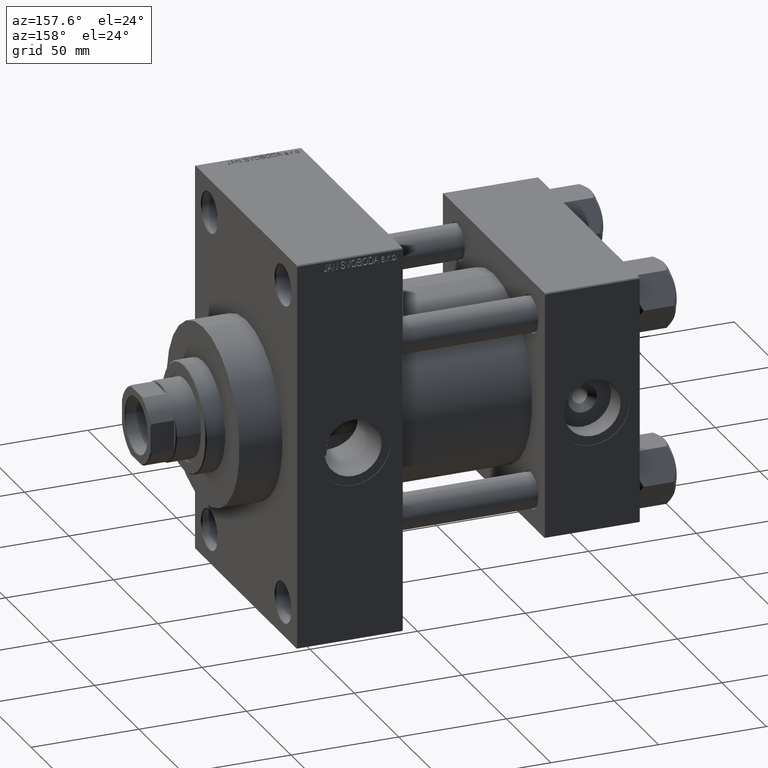
[diagram: clean part render]
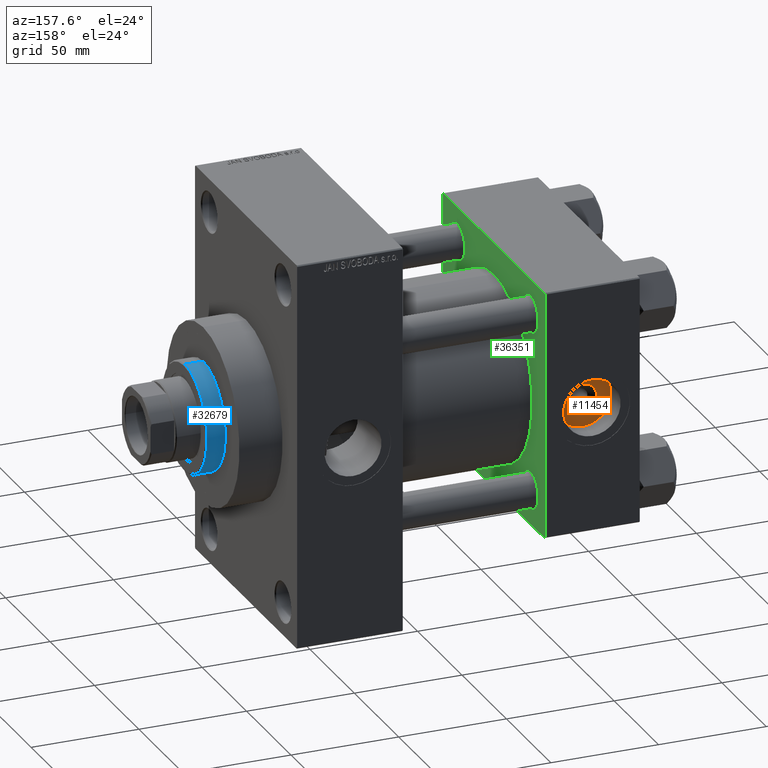
[diagram: same view with three faces highlighted in distinct colors, each labeled with its STEP entity id]
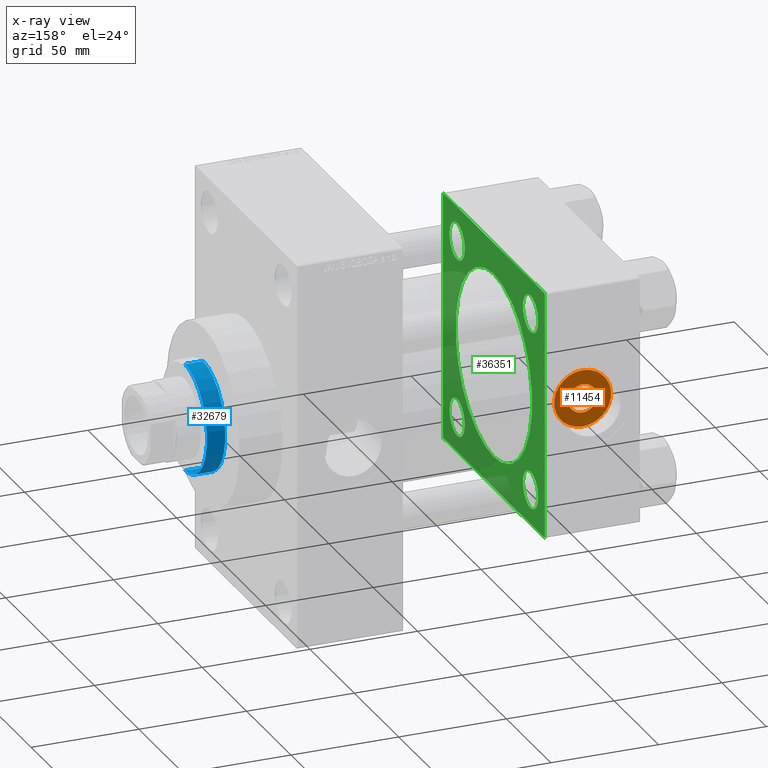
[diagram: x-ray of the same camera — body ghosted, the three highlighted faces saturated]
A machine part, auxiliary view with three faces highlighted in distinct colors.
The next image is the same camera in x-ray (body ghosted, the three faces saturated) — at least one of them is partly hidden behind the body in this view.
Their STEP definitions:

[orange] entity #11454 — the highlighted planar face has unit normal (0, 1, 0).
#432 = CIRCLE ( 'NONE', #6572, 6.640000000000048530 ) ;
#1612 = VERTEX_POINT ( 'NONE', #31325 ) ;
#1887 = AXIS2_PLACEMENT_3D ( 'NONE', #35921, #2862, #17583 ) ;
#2862 = DIRECTION ( 'NONE',  ( 0.000000000000000000, 1.000000000000000000, 0.000000000000000000 ) ) ;
#2896 = DIRECTION ( 'NONE',  ( 0.000000000000000000, -0.000000000000000000, 1.000000000000000000 ) ) ;
#4707 = DIRECTION ( 'NONE',  ( 0.000000000000000000, 0.000000000000000000, 1.000000000000000000 ) ) ;
#4834 = DIRECTION ( 'NONE',  ( -0.000000000000000000, -1.000000000000000000, -0.000000000000000000 ) ) ;
#6486 = CIRCLE ( 'NONE', #1887, 13.22000000000000419 ) ;
#6572 = AXIS2_PLACEMENT_3D ( 'NONE', #23293, #44520, #4707 ) ;
#8546 = VERTEX_POINT ( 'NONE', #31922 ) ;
#8781 = EDGE_LOOP ( 'NONE', ( #26931, #31470 ) ) ;
#10806 = AXIS2_PLACEMENT_3D ( 'NONE', #12808, #4834, #38840 ) ;
#11454 = ADVANCED_FACE ( 'NONE', ( #14003, #28957 ), #35955, .T. ) ;
#12407 = EDGE_CURVE ( 'NONE', #38033, #28678, #43931, .T. ) ;
#12430 = AXIS2_PLACEMENT_3D ( 'NONE', #29352, #33207, #44046 ) ;
#12808 = CARTESIAN_POINT ( 'NONE',  ( 22.00000000000000000, 46.50000000000000000, 0.000000000000000000 ) ) ;
#14003 = FACE_BOUND ( 'NONE', #26226, .T. ) ;
#15229 = CARTESIAN_POINT ( 'NONE',  ( 22.00000000000000000, 46.50000000000000000, 6.640000000000048530 ) ) ;
#15294 = ORIENTED_EDGE ( 'NONE', *, *, #46822, .T. ) ;
#17583 = DIRECTION ( 'NONE',  ( 0.000000000000000000, 0.000000000000000000, 1.000000000000000000 ) ) ;
#17767 = EDGE_CURVE ( 'NONE', #8546, #1612, #33200, .T. ) ;
#17816 = CARTESIAN_POINT ( 'NONE',  ( 22.00000000000000000, 46.50000000000000000, -6.640000000000048530 ) ) ;
#23293 = CARTESIAN_POINT ( 'NONE',  ( 22.00000000000000000, 46.50000000000000000, 0.000000000000000000 ) ) ;
#26226 = EDGE_LOOP ( 'NONE', ( #46633, #15294 ) ) ;
#26931 = ORIENTED_EDGE ( 'NONE', *, *, #17767, .T. ) ;
#28678 = VERTEX_POINT ( 'NONE', #17816 ) ;
#28695 = EDGE_CURVE ( 'NONE', #1612, #8546, #6486, .T. ) ;
#28957 = FACE_OUTER_BOUND ( 'NONE', #8781, .T. ) ;
#29352 = CARTESIAN_POINT ( 'NONE',  ( 22.00000000000000000, 46.50000000000000000, 0.000000000000000000 ) ) ;
#31325 = CARTESIAN_POINT ( 'NONE',  ( 22.00000000000000000, 46.50000000000000000, -13.22000000000000419 ) ) ;
#31470 = ORIENTED_EDGE ( 'NONE', *, *, #28695, .T. ) ;
#31922 = CARTESIAN_POINT ( 'NONE',  ( 22.00000000000000000, 46.50000000000000000, 13.22000000000000419 ) ) ;
#33200 = CIRCLE ( 'NONE', #12430, 13.22000000000000419 ) ;
#33207 = DIRECTION ( 'NONE',  ( 0.000000000000000000, 1.000000000000000000, 0.000000000000000000 ) ) ;
#35921 = CARTESIAN_POINT ( 'NONE',  ( 22.00000000000000000, 46.50000000000000000, 0.000000000000000000 ) ) ;
#35955 = PLANE ( 'NONE',  #46947 ) ;
#36189 = CARTESIAN_POINT ( 'NONE',  ( 22.00000000000000000, 46.50000000000000000, 0.000000000000000000 ) ) ;
#38033 = VERTEX_POINT ( 'NONE', #15229 ) ;
#38840 = DIRECTION ( 'NONE',  ( 0.000000000000000000, 0.000000000000000000, 1.000000000000000000 ) ) ;
#43664 = DIRECTION ( 'NONE',  ( 0.000000000000000000, 1.000000000000000000, 0.000000000000000000 ) ) ;
#43931 = CIRCLE ( 'NONE', #10806, 6.640000000000048530 ) ;
#44046 = DIRECTION ( 'NONE',  ( 0.000000000000000000, 0.000000000000000000, 1.000000000000000000 ) ) ;
#44520 = DIRECTION ( 'NONE',  ( -0.000000000000000000, -1.000000000000000000, -0.000000000000000000 ) ) ;
#46633 = ORIENTED_EDGE ( 'NONE', *, *, #12407, .T. ) ;
#46822 = EDGE_CURVE ( 'NONE', #28678, #38033, #432, .T. ) ;
#46947 = AXIS2_PLACEMENT_3D ( 'NONE', #36189, #43664, #2896 ) ;

[blue] entity #32679 — the highlighted cylindrical surface (partial cylindrical patch) has radius 25 mm, axis along (-1, 0, 0).
#1287 = EDGE_CURVE ( 'NONE', #45674, #15330, #6185, .T. ) ;
#1856 = ORIENTED_EDGE ( 'NONE', *, *, #17890, .T. ) ;
#3109 = DIRECTION ( 'NONE',  ( 1.000000000000000000, 0.000000000000000000, 0.000000000000000000 ) ) ;
#3199 = CIRCLE ( 'NONE', #14763, 25.00000000000000000 ) ;
#3906 = ORIENTED_EDGE ( 'NONE', *, *, #33567, .T. ) ;
#6185 = CIRCLE ( 'NONE', #23139, 25.00000000000000000 ) ;
#7157 = CARTESIAN_POINT ( 'NONE',  ( 25.00000000000000000, 3.061616997868383043E-15, 43.25999999999999801 ) ) ;
#7425 = VERTEX_POINT ( 'NONE', #7157 ) ;
#8829 = VECTOR ( 'NONE', #25926, 1000.000000000000000 ) ;
#9468 = EDGE_LOOP ( 'NONE', ( #22148, #44654, #1856, #3906 ) ) ;
#9766 = LINE ( 'NONE', #20616, #45493 ) ;
#11205 = CARTESIAN_POINT ( 'NONE',  ( 25.00000000000000000, 3.061616997868383043E-15, 52.25999999999999801 ) ) ;
#12996 = DIRECTION ( 'NONE',  ( -0.000000000000000000, -0.000000000000000000, -1.000000000000000000 ) ) ;
#14763 = AXIS2_PLACEMENT_3D ( 'NONE', #46968, #18034, #32756 ) ;
#14832 = AXIS2_PLACEMENT_3D ( 'NONE', #24327, #12996, #42412 ) ;
#15330 = VERTEX_POINT ( 'NONE', #37065 ) ;
#16622 = FACE_OUTER_BOUND ( 'NONE', #9468, .T. ) ;
#17833 = CARTESIAN_POINT ( 'NONE',  ( 0.000000000000000000, 0.000000000000000000, 51.75999999999996959 ) ) ;
#17890 = EDGE_CURVE ( 'NONE', #15330, #35125, #9766, .T. ) ;
#18034 = DIRECTION ( 'NONE',  ( 0.000000000000000000, 0.000000000000000000, 1.000000000000000000 ) ) ;
#18428 = LINE ( 'NONE', #11205, #8829 ) ;
#20385 = DIRECTION ( 'NONE',  ( -0.000000000000000000, -0.000000000000000000, -1.000000000000000000 ) ) ;
#20616 = CARTESIAN_POINT ( 'NONE',  ( -25.00000000000000000, 0.000000000000000000, 52.25999999999999801 ) ) ;
#22148 = ORIENTED_EDGE ( 'NONE', *, *, #29510, .F. ) ;
#23139 = AXIS2_PLACEMENT_3D ( 'NONE', #17833, #32315, #3109 ) ;
#24327 = CARTESIAN_POINT ( 'NONE',  ( 0.000000000000000000, 0.000000000000000000, 52.25999999999999801 ) ) ;
#25926 = DIRECTION ( 'NONE',  ( -0.000000000000000000, -0.000000000000000000, -1.000000000000000000 ) ) ;
#28569 = CARTESIAN_POINT ( 'NONE',  ( 25.00000000000000000, 3.061616997868383043E-15, 51.75999999999996959 ) ) ;
#29510 = EDGE_CURVE ( 'NONE', #45674, #7425, #18428, .T. ) ;
#32315 = DIRECTION ( 'NONE',  ( 0.000000000000000000, 0.000000000000000000, -1.000000000000000000 ) ) ;
#32679 = ADVANCED_FACE ( 'NONE', ( #16622 ), #46020, .T. ) ;
#32756 = DIRECTION ( 'NONE',  ( 1.000000000000000000, 0.000000000000000000, 0.000000000000000000 ) ) ;
#33567 = EDGE_CURVE ( 'NONE', #35125, #7425, #3199, .T. ) ;
#35125 = VERTEX_POINT ( 'NONE', #39061 ) ;
#37065 = CARTESIAN_POINT ( 'NONE',  ( -25.00000000000000000, 0.000000000000000000, 51.75999999999996959 ) ) ;
#39061 = CARTESIAN_POINT ( 'NONE',  ( -25.00000000000000000, 0.000000000000000000, 43.25999999999999801 ) ) ;
#42412 = DIRECTION ( 'NONE',  ( -1.000000000000000000, 0.000000000000000000, 0.000000000000000000 ) ) ;
#44654 = ORIENTED_EDGE ( 'NONE', *, *, #1287, .T. ) ;
#45493 = VECTOR ( 'NONE', #20385, 1000.000000000000000 ) ;
#45674 = VERTEX_POINT ( 'NONE', #28569 ) ;
#46020 = CYLINDRICAL_SURFACE ( 'NONE', #14832, 25.00000000000000000 ) ;
#46968 = CARTESIAN_POINT ( 'NONE',  ( 0.000000000000000000, 0.000000000000000000, 43.25999999999999801 ) ) ;

[green] entity #36351 — the highlighted planar face has unit normal (-1, 0, 0).
#433 = DIRECTION ( 'NONE',  ( 0.000000000000000000, 0.7071067811865474617, -0.7071067811865474617 ) ) ;
#934 = ORIENTED_EDGE ( 'NONE', *, *, #11904, .T. ) ;
#1107 = FACE_BOUND ( 'NONE', #29339, .T. ) ;
#1370 = VERTEX_POINT ( 'NONE', #43876 ) ;
#1557 = VERTEX_POINT ( 'NONE', #12984 ) ;
#1891 = EDGE_CURVE ( 'NONE', #44069, #39254, #41774, .T. ) ;
#2237 = EDGE_CURVE ( 'NONE', #33188, #12917, #37916, .T. ) ;
#2337 = CARTESIAN_POINT ( 'NONE',  ( 44.00000000000000000, 41.34999999999999432, -49.85000000000009379 ) ) ;
#2630 = CARTESIAN_POINT ( 'NONE',  ( 44.00000000000000000, 57.49999999999999289, -57.00000000000000711 ) ) ;
#3773 = EDGE_LOOP ( 'NONE', ( #22013, #36658 ) ) ;
#3954 = DIRECTION ( 'NONE',  ( -1.000000000000000000, 0.000000000000000000, -0.000000000000000000 ) ) ;
#4190 = CIRCLE ( 'NONE', #36523, 8.500000000000090594 ) ;
#4249 = FACE_BOUND ( 'NONE', #22570, .T. ) ;
#4825 = CIRCLE ( 'NONE', #27189, 8.500000000000090594 ) ;
#4965 = VECTOR ( 'NONE', #433, 1000.000000000000114 ) ;
#5179 = DIRECTION ( 'NONE',  ( 0.000000000000000000, 0.000000000000000000, 1.000000000000000000 ) ) ;
#5210 = DIRECTION ( 'NONE',  ( 0.000000000000000000, -0.7071067811865573427, 0.7071067811865376918 ) ) ;
#6006 = LINE ( 'NONE', #2630, #17998 ) ;
#6601 = EDGE_CURVE ( 'NONE', #13879, #39224, #14821, .T. ) ;
#6974 = CARTESIAN_POINT ( 'NONE',  ( 44.00000000000000000, -2.602085213965210642E-15, 0.000000000000000000 ) ) ;
#7710 = VECTOR ( 'NONE', #5210, 1000.000000000000114 ) ;
#7811 = DIRECTION ( 'NONE',  ( 0.000000000000000000, 0.000000000000000000, 1.000000000000000000 ) ) ;
#7825 = CARTESIAN_POINT ( 'NONE',  ( 44.00000000000000000, 41.34999999999999432, 41.35000000000000142 ) ) ;
#7863 = FACE_BOUND ( 'NONE', #3773, .T. ) ;
#8415 = CARTESIAN_POINT ( 'NONE',  ( 44.00000000000000000, -57.00000000000000711, -57.50000000000000711 ) ) ;
#8690 = AXIS2_PLACEMENT_3D ( 'NONE', #33685, #40430, #15364 ) ;
#8808 = CARTESIAN_POINT ( 'NONE',  ( 44.00000000000000000, -41.34999999999998721, -41.35000000000000853 ) ) ;
#9080 = ORIENTED_EDGE ( 'NONE', *, *, #41205, .T. ) ;
#9238 = DIRECTION ( 'NONE',  ( -1.000000000000000000, 0.000000000000000000, -0.000000000000000000 ) ) ;
#9374 = EDGE_CURVE ( 'NONE', #44081, #34012, #25351, .T. ) ;
#9526 = VECTOR ( 'NONE', #40079, 1000.000000000000000 ) ;
#9615 = CARTESIAN_POINT ( 'NONE',  ( 44.00000000000000000, -41.34999999999998721, 32.84999999999992326 ) ) ;
#9711 = CARTESIAN_POINT ( 'NONE',  ( 44.00000000000000000, 41.34999999999999432, -41.35000000000000142 ) ) ;
#10346 = DIRECTION ( 'NONE',  ( -0.000000000000000000, 0.7071067811865376918, 0.7071067811865573427 ) ) ;
#11619 = EDGE_CURVE ( 'NONE', #1370, #33067, #12528, .T. ) ;
#11774 = CARTESIAN_POINT ( 'NONE',  ( 44.00000000000000000, 41.34999999999999432, -32.84999999999991616 ) ) ;
#11904 = EDGE_CURVE ( 'NONE', #13879, #1557, #15856, .T. ) ;
#11941 = CARTESIAN_POINT ( 'NONE',  ( 44.00000000000000000, -41.34999999999998721, -41.35000000000000853 ) ) ;
#12163 = DIRECTION ( 'NONE',  ( 0.000000000000000000, 0.000000000000000000, 1.000000000000000000 ) ) ;
#12183 = EDGE_LOOP ( 'NONE', ( #17293, #47707, #47414, #934, #15132, #43553, #32729, #41831 ) ) ;
#12247 = VERTEX_POINT ( 'NONE', #45917 ) ;
#12528 = LINE ( 'NONE', #24095, #39305 ) ;
#12629 = CIRCLE ( 'NONE', #22654, 8.500000000000090594 ) ;
#12917 = VERTEX_POINT ( 'NONE', #20030 ) ;
#12984 = CARTESIAN_POINT ( 'NONE',  ( 44.00000000000000000, 57.00000000000000711, 57.50000000000000711 ) ) ;
#13204 = EDGE_LOOP ( 'NONE', ( #42787, #37102 ) ) ;
#13754 = DIRECTION ( 'NONE',  ( 1.000000000000000000, -0.000000000000000000, 0.000000000000000000 ) ) ;
#13879 = VERTEX_POINT ( 'NONE', #37138 ) ;
#14342 = CIRCLE ( 'NONE', #33590, 8.500000000000090594 ) ;
#14821 = LINE ( 'NONE', #29531, #19106 ) ;
#15132 = ORIENTED_EDGE ( 'NONE', *, *, #30807, .T. ) ;
#15364 = DIRECTION ( 'NONE',  ( -0.000000000000000000, 0.000000000000000000, 1.000000000000000000 ) ) ;
#15856 = LINE ( 'NONE', #38500, #7710 ) ;
#15867 = DIRECTION ( 'NONE',  ( -1.000000000000000000, 0.000000000000000000, -0.000000000000000000 ) ) ;
#16796 = EDGE_CURVE ( 'NONE', #43241, #1370, #22988, .T. ) ;
#17035 = VERTEX_POINT ( 'NONE', #25850 ) ;
#17293 = ORIENTED_EDGE ( 'NONE', *, *, #26558, .F. ) ;
#17428 = DIRECTION ( 'NONE',  ( 0.000000000000000000, 0.000000000000000000, 1.000000000000000000 ) ) ;
#17998 = VECTOR ( 'NONE', #10346, 1000.000000000000114 ) ;
#18143 = LINE ( 'NONE', #21288, #9526 ) ;
#18326 = CARTESIAN_POINT ( 'NONE',  ( 44.00000000000000000, 57.49999999999999289, 57.50000000000000711 ) ) ;
#18535 = CARTESIAN_POINT ( 'NONE',  ( 44.00000000000000000, 57.49999999999999289, -57.00000000000000711 ) ) ;
#18583 = DIRECTION ( 'NONE',  ( 0.000000000000000000, 0.000000000000000000, 1.000000000000000000 ) ) ;
#18960 = FACE_OUTER_BOUND ( 'NONE', #12183, .T. ) ;
#19106 = VECTOR ( 'NONE', #40609, 1000.000000000000000 ) ;
#19430 = AXIS2_PLACEMENT_3D ( 'NONE', #40274, #36187, #29190 ) ;
#19643 = DIRECTION ( 'NONE',  ( -1.000000000000000000, 0.000000000000000000, -0.000000000000000000 ) ) ;
#19659 = DIRECTION ( 'NONE',  ( -1.000000000000000000, 0.000000000000000000, -0.000000000000000000 ) ) ;
#20030 = CARTESIAN_POINT ( 'NONE',  ( 44.00000000000000000, 2.663896022368408223E-15, -43.00000000000000000 ) ) ;
#20789 = CARTESIAN_POINT ( 'NONE',  ( 44.00000000000000000, -57.50000000000000711, 57.00000000000000711 ) ) ;
#21288 = CARTESIAN_POINT ( 'NONE',  ( 44.00000000000000000, 57.49999999999999289, -57.49999999999999289 ) ) ;
#21977 = CARTESIAN_POINT ( 'NONE',  ( 44.00000000000000000, 41.34999999999999432, -41.35000000000000142 ) ) ;
#22013 = ORIENTED_EDGE ( 'NONE', *, *, #44467, .T. ) ;
#22291 = CARTESIAN_POINT ( 'NONE',  ( 44.00000000000000000, 57.00000000000002132, -57.49999999999999289 ) ) ;
#22507 = AXIS2_PLACEMENT_3D ( 'NONE', #9711, #9238, #17428 ) ;
#22552 = DIRECTION ( 'NONE',  ( -1.000000000000000000, 0.000000000000000000, -0.000000000000000000 ) ) ;
#22570 = EDGE_LOOP ( 'NONE', ( #34082, #9080 ) ) ;
#22619 = CARTESIAN_POINT ( 'NONE',  ( 44.00000000000000000, -57.00000000000000711, -57.50000000000000711 ) ) ;
#22654 = AXIS2_PLACEMENT_3D ( 'NONE', #44617, #36920, #38102 ) ;
#22988 = LINE ( 'NONE', #20789, #24683 ) ;
#23261 = CIRCLE ( 'NONE', #19430, 8.500000000000090594 ) ;
#23294 = AXIS2_PLACEMENT_3D ( 'NONE', #6974, #13754, #28464 ) ;
#23382 = DIRECTION ( 'NONE',  ( 0.000000000000000000, 0.000000000000000000, -1.000000000000000000 ) ) ;
#23671 = EDGE_CURVE ( 'NONE', #45716, #39224, #6006, .T. ) ;
#24044 = ORIENTED_EDGE ( 'NONE', *, *, #30803, .T. ) ;
#24095 = CARTESIAN_POINT ( 'NONE',  ( 44.00000000000000000, -57.50000000000000711, 57.49999999999999289 ) ) ;
#24596 = AXIS2_PLACEMENT_3D ( 'NONE', #11941, #19643, #26421 ) ;
#24683 = VECTOR ( 'NONE', #42266, 1000.000000000000114 ) ;
#24729 = EDGE_CURVE ( 'NONE', #12247, #17035, #4190, .T. ) ;
#25192 = DIRECTION ( 'NONE',  ( 0.000000000000000000, 0.000000000000000000, 1.000000000000000000 ) ) ;
#25287 = EDGE_CURVE ( 'NONE', #33067, #30931, #29380, .T. ) ;
#25351 = CIRCLE ( 'NONE', #24596, 8.500000000000090594 ) ;
#25613 = VECTOR ( 'NONE', #43662, 1000.000000000000000 ) ;
#25736 = FACE_BOUND ( 'NONE', #26173, .T. ) ;
#25850 = CARTESIAN_POINT ( 'NONE',  ( 44.00000000000000000, 41.34999999999999432, 49.85000000000009379 ) ) ;
#26173 = EDGE_LOOP ( 'NONE', ( #37035, #27965 ) ) ;
#26421 = DIRECTION ( 'NONE',  ( 0.000000000000000000, 0.000000000000000000, 1.000000000000000000 ) ) ;
#26558 = EDGE_CURVE ( 'NONE', #45716, #30931, #18143, .T. ) ;
#27189 = AXIS2_PLACEMENT_3D ( 'NONE', #37481, #3954, #7811 ) ;
#27750 = EDGE_CURVE ( 'NONE', #31045, #28740, #12629, .T. ) ;
#27965 = ORIENTED_EDGE ( 'NONE', *, *, #36552, .T. ) ;
#28246 = CARTESIAN_POINT ( 'NONE',  ( 44.00000000000000000, -2.602085213965210642E-15, 43.00000000000000000 ) ) ;
#28464 = DIRECTION ( 'NONE',  ( 0.000000000000000000, 0.000000000000000000, 1.000000000000000000 ) ) ;
#28740 = VERTEX_POINT ( 'NONE', #40476 ) ;
#29043 = CARTESIAN_POINT ( 'NONE',  ( 44.00000000000000000, -2.602085213965210642E-15, 0.000000000000000000 ) ) ;
#29190 = DIRECTION ( 'NONE',  ( 0.000000000000000000, 0.000000000000000000, 1.000000000000000000 ) ) ;
#29339 = EDGE_LOOP ( 'NONE', ( #39747, #24044 ) ) ;
#29380 = LINE ( 'NONE', #22619, #4965 ) ;
#29531 = CARTESIAN_POINT ( 'NONE',  ( 44.00000000000000000, 57.49999999999999289, 57.50000000000000711 ) ) ;
#29638 = CIRCLE ( 'NONE', #39635, 8.500000000000090594 ) ;
#30305 = FACE_BOUND ( 'NONE', #13204, .T. ) ;
#30443 = CARTESIAN_POINT ( 'NONE',  ( 44.00000000000000000, -57.50000000000000711, -57.00000000000000711 ) ) ;
#30459 = CIRCLE ( 'NONE', #43530, 43.00000000000000000 ) ;
#30803 = EDGE_CURVE ( 'NONE', #28740, #31045, #23261, .T. ) ;
#30807 = EDGE_CURVE ( 'NONE', #1557, #43241, #44599, .T. ) ;
#30931 = VERTEX_POINT ( 'NONE', #8415 ) ;
#31045 = VERTEX_POINT ( 'NONE', #9615 ) ;
#32729 = ORIENTED_EDGE ( 'NONE', *, *, #11619, .T. ) ;
#33067 = VERTEX_POINT ( 'NONE', #30443 ) ;
#33188 = VERTEX_POINT ( 'NONE', #28246 ) ;
#33194 = CARTESIAN_POINT ( 'NONE',  ( 44.00000000000000000, -57.00000000000003553, 57.49999999999999289 ) ) ;
#33590 = AXIS2_PLACEMENT_3D ( 'NONE', #8808, #19659, #5179 ) ;
#33685 = CARTESIAN_POINT ( 'NONE',  ( 44.00000000000000000, 0.000000000000000000, 0.000000000000000000 ) ) ;
#34012 = VERTEX_POINT ( 'NONE', #46387 ) ;
#34082 = ORIENTED_EDGE ( 'NONE', *, *, #1891, .T. ) ;
#35392 = DIRECTION ( 'NONE',  ( 1.000000000000000000, -0.000000000000000000, 0.000000000000000000 ) ) ;
#36187 = DIRECTION ( 'NONE',  ( -1.000000000000000000, 0.000000000000000000, -0.000000000000000000 ) ) ;
#36351 = ADVANCED_FACE ( 'NONE', ( #7863, #4249, #1107, #25736, #30305, #18960 ), #41149, .F. ) ;
#36523 = AXIS2_PLACEMENT_3D ( 'NONE', #7825, #22552, #12163 ) ;
#36552 = EDGE_CURVE ( 'NONE', #17035, #12247, #4825, .T. ) ;
#36658 = ORIENTED_EDGE ( 'NONE', *, *, #9374, .T. ) ;
#36920 = DIRECTION ( 'NONE',  ( -1.000000000000000000, 0.000000000000000000, -0.000000000000000000 ) ) ;
#37035 = ORIENTED_EDGE ( 'NONE', *, *, #24729, .T. ) ;
#37102 = ORIENTED_EDGE ( 'NONE', *, *, #42380, .F. ) ;
#37138 = CARTESIAN_POINT ( 'NONE',  ( 44.00000000000000000, 57.49999999999999289, 57.00000000000003553 ) ) ;
#37481 = CARTESIAN_POINT ( 'NONE',  ( 44.00000000000000000, 41.34999999999999432, 41.35000000000000142 ) ) ;
#37916 = CIRCLE ( 'NONE', #23294, 43.00000000000000000 ) ;
#38102 = DIRECTION ( 'NONE',  ( 0.000000000000000000, 0.000000000000000000, 1.000000000000000000 ) ) ;
#38500 = CARTESIAN_POINT ( 'NONE',  ( 44.00000000000000000, 57.00000000000000711, 57.50000000000000711 ) ) ;
#39224 = VERTEX_POINT ( 'NONE', #18535 ) ;
#39254 = VERTEX_POINT ( 'NONE', #11774 ) ;
#39305 = VECTOR ( 'NONE', #23382, 1000.000000000000000 ) ;
#39635 = AXIS2_PLACEMENT_3D ( 'NONE', #21977, #15867, #18583 ) ;
#39747 = ORIENTED_EDGE ( 'NONE', *, *, #27750, .T. ) ;
#40079 = DIRECTION ( 'NONE',  ( 0.000000000000000000, -1.000000000000000000, -1.206764157201257045E-16 ) ) ;
#40274 = CARTESIAN_POINT ( 'NONE',  ( 44.00000000000000000, -41.34999999999998721, 41.35000000000000853 ) ) ;
#40430 = DIRECTION ( 'NONE',  ( -1.000000000000000000, 0.000000000000000000, -0.000000000000000000 ) ) ;
#40476 = CARTESIAN_POINT ( 'NONE',  ( 44.00000000000000000, -41.34999999999998721, 49.85000000000010090 ) ) ;
#40609 = DIRECTION ( 'NONE',  ( 0.000000000000000000, 0.000000000000000000, -1.000000000000000000 ) ) ;
#41149 = PLANE ( 'NONE',  #8690 ) ;
#41205 = EDGE_CURVE ( 'NONE', #39254, #44069, #29638, .T. ) ;
#41774 = CIRCLE ( 'NONE', #22507, 8.500000000000090594 ) ;
#41831 = ORIENTED_EDGE ( 'NONE', *, *, #25287, .T. ) ;
#42266 = DIRECTION ( 'NONE',  ( -0.000000000000000000, -0.7071067811865376918, -0.7071067811865573427 ) ) ;
#42380 = EDGE_CURVE ( 'NONE', #12917, #33188, #30459, .T. ) ;
#42787 = ORIENTED_EDGE ( 'NONE', *, *, #2237, .F. ) ;
#43241 = VERTEX_POINT ( 'NONE', #33194 ) ;
#43530 = AXIS2_PLACEMENT_3D ( 'NONE', #29043, #35392, #25192 ) ;
#43553 = ORIENTED_EDGE ( 'NONE', *, *, #16796, .T. ) ;
#43662 = DIRECTION ( 'NONE',  ( 0.000000000000000000, -1.000000000000000000, -1.206764157201257045E-16 ) ) ;
#43876 = CARTESIAN_POINT ( 'NONE',  ( 44.00000000000000000, -57.50000000000000711, 57.00000000000000711 ) ) ;
#44069 = VERTEX_POINT ( 'NONE', #2337 ) ;
#44081 = VERTEX_POINT ( 'NONE', #45511 ) ;
#44467 = EDGE_CURVE ( 'NONE', #34012, #44081, #14342, .T. ) ;
#44599 = LINE ( 'NONE', #18326, #25613 ) ;
#44617 = CARTESIAN_POINT ( 'NONE',  ( 44.00000000000000000, -41.34999999999998721, 41.35000000000000853 ) ) ;
#45511 = CARTESIAN_POINT ( 'NONE',  ( 44.00000000000000000, -41.34999999999998721, -32.84999999999992326 ) ) ;
#45716 = VERTEX_POINT ( 'NONE', #22291 ) ;
#45917 = CARTESIAN_POINT ( 'NONE',  ( 44.00000000000000000, 41.34999999999999432, 32.84999999999991616 ) ) ;
#46387 = CARTESIAN_POINT ( 'NONE',  ( 44.00000000000000000, -41.34999999999998721, -49.85000000000010090 ) ) ;
#47414 = ORIENTED_EDGE ( 'NONE', *, *, #6601, .F. ) ;
#47707 = ORIENTED_EDGE ( 'NONE', *, *, #23671, .T. ) ;